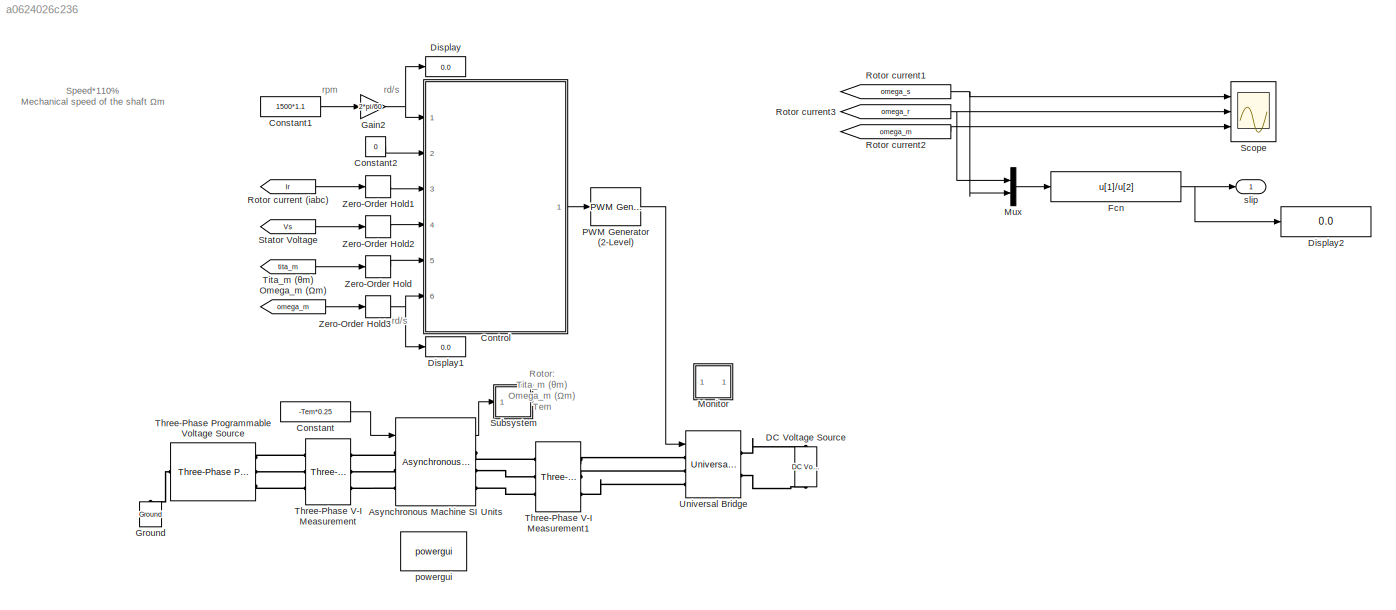
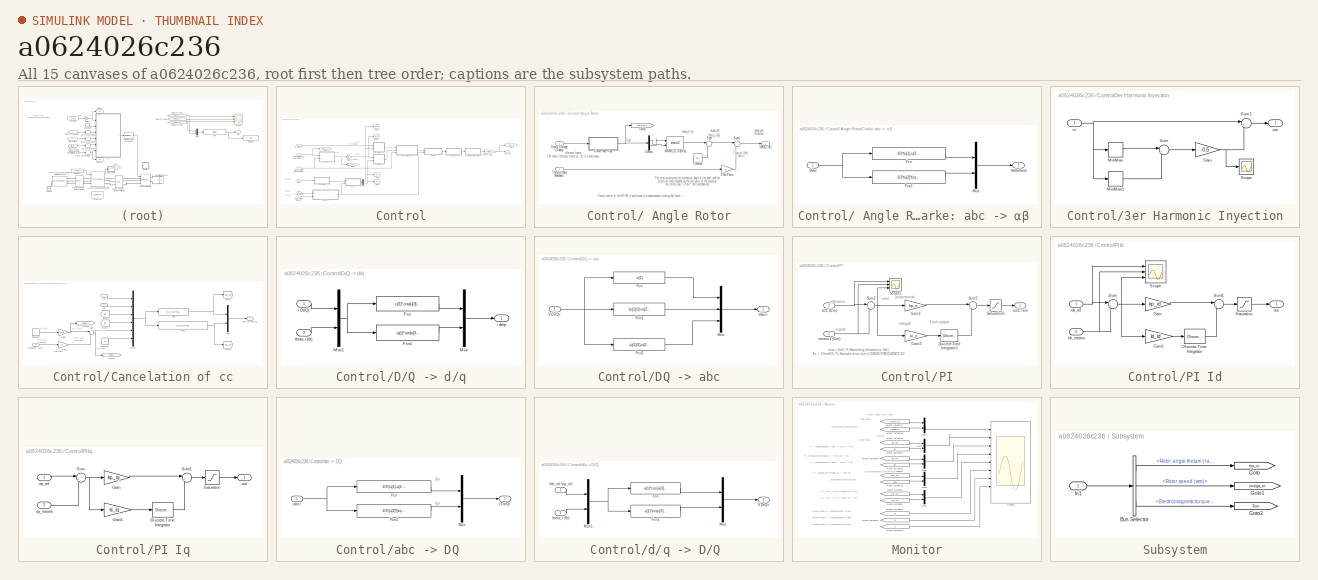
[diagram: thumbnail index - all 15 canvases of the model, root first then tree order]
MODEL slx_a0624026c236
KIND model
CONFIG AbsTol = auto
CONFIG EnableMultiTasking = on
CONFIG FixedStep = auto
CONFIG MaxStep = auto
CONFIG MinStep = auto
CONFIG RelTol = 1e-3
CONFIG SampleTimeConstraint = Unconstrained
CONFIG Solver = ode45
CONFIG SolverName = ode45
CONFIG StartTime = 0.0
CONFIG StopTime = 5
BLOCK [Reference] Asynchronous Machine SI Units  REF=powerlib/Machines/Asynchronous Machine
SI Units
  AttributesFormatString = \n
  Ports = [1, 1, 0, 0, 0, 3, 3]
  SourceBlock = powerlib/Machines/Asynchronous Machine\nSI Units
  SourceProductBaseCode = PS
  SourceProductName = Simscape Power Systems
  SourceType = Asynchronous Machine
BLOCK [Constant] Constant
  Value = -Tem*0.25
BLOCK [Constant] Constant1
  Value = 1500*1.1
BLOCK [Constant] Constant2
  Value = 0
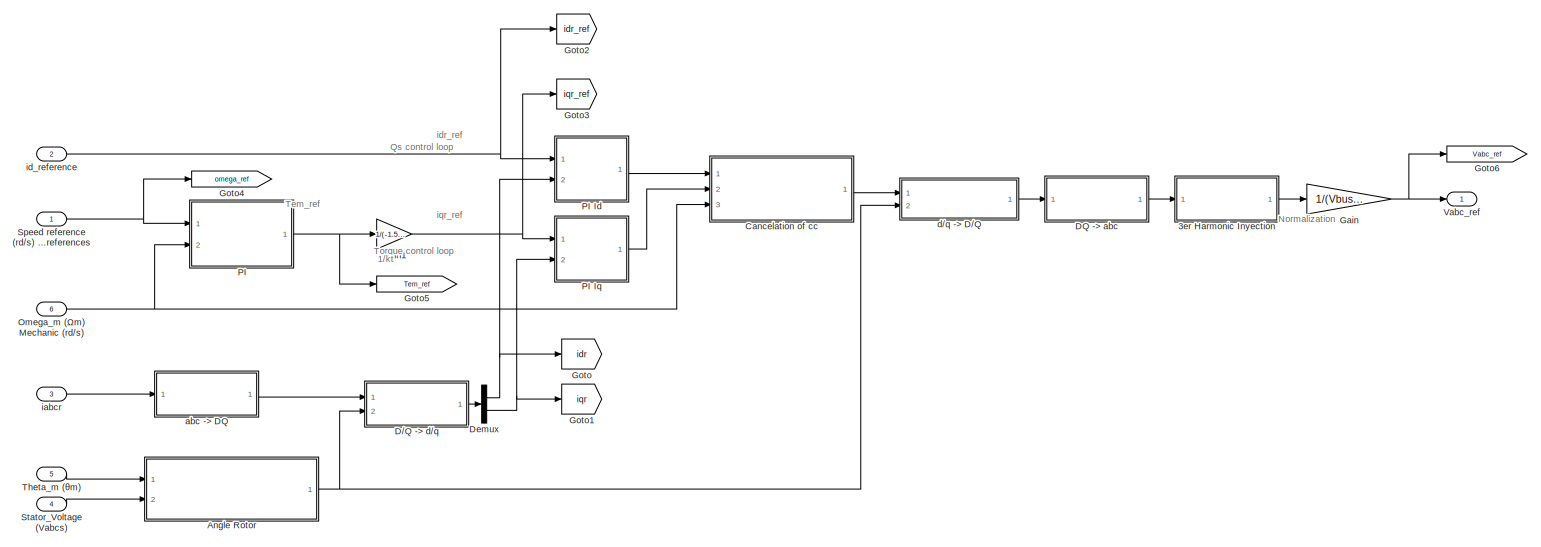
[diagram: Control - part 1/2, most of the canvas]
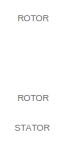
[diagram: Control - part 2/2, bottom left region]
BLOCK [SubSystem] Control
  Ports = [6, 1]
  RequestExecContextInheritance = off
  Variant = off
BLOCK [SubSystem] Control/ Angle Rotor
  Ports = [2, 1]
  RequestExecContextInheritance = off
  Variant = off
BLOCK [SubSystem] Control/ Angle Rotor/Clarke: abc -> αβ 
  Ports = [1, 1]
  RequestExecContextInheritance = off
  Variant = off
BLOCK [Fcn] Control/ Angle Rotor/Clarke: abc -> αβ /Fcn
  Expr = 2/3*(u[1]-u[2]/2-u[3]/2)
BLOCK [Fcn] Control/ Angle Rotor/Clarke: abc -> αβ /Fcn1
  Expr = 2/3*(u[2]*(sqrt(3)/2)-u[3]*(sqrt(3)/2))
BLOCK [Mux] Control/ Angle Rotor/Clarke: abc -> αβ /Mux
  DisplayOption = bar
  Inputs = 2
  Ports = [2, 1]
BLOCK [Inport] Control/ Angle Rotor/Clarke: abc -> αβ /Vabc
  IconDisplay = Port number
BLOCK [Outport] Control/ Angle Rotor/Clarke: abc -> αβ /Valfa//beta 
  IconDisplay = Port number
BLOCK [Constant] Control/ Angle Rotor/Constant
  Value = pi/2
BLOCK [Demux] Control/ Angle Rotor/Demux
  DisplayOption = bar
  Outputs = 2
  Ports = [1, 2]
BLOCK [Goto] Control/ Angle Rotor/Goto5
  GotoTag = Valfa_beta
  TagVisibility = global
BLOCK [Gain] Control/ Angle Rotor/Pole Pairs
  Gain = p
  OutDataTypeStr = Inherit: Inherit via internal rule
  ParamDataTypeStr = Inherit: Inherit via internal rule
  SaturateOnIntegerOverflow = off
BLOCK [Inport] Control/ Angle Rotor/Stator_Voltage (Vabcs)
  IconDisplay = Port number
  Port = 2
BLOCK [Sum] Control/ Angle Rotor/Sum
  IconShape = round
  InputSameDT = off
  Inputs = |+-
  OutDataTypeStr = Inherit: Inherit via internal rule
  Ports = [2, 1]
  SaturateOnIntegerOverflow = off
BLOCK [Sum] Control/ Angle Rotor/Sum1
  IconShape = round
  InputSameDT = off
  Inputs = |+-
  OutDataTypeStr = Inherit: Inherit via internal rule
  Ports = [2, 1]
  SaturateOnIntegerOverflow = off
BLOCK [Inport] Control/ Angle Rotor/Theta_m (θm) Mechanic
  IconDisplay = Port number
BLOCK [Outport] Control/ Angle Rotor/theta_r (θr)
  IconDisplay = Port number
BLOCK [Trigonometry] Control/ Angle Rotor/θv=tan^(-1) (Vβ//Vα)
  Operator = atan2
  Ports = [2, 1]
BLOCK [SubSystem] Control/3er Harmonic Inyection
  Ports = [1, 1]
  RequestExecContextInheritance = off
  Variant = off
BLOCK [Gain] Control/3er Harmonic Inyection/Gain
  Gain = -0.5
  OutDataTypeStr = Inherit: Inherit via internal rule
  ParamDataTypeStr = Inherit: Inherit via internal rule
  SaturateOnIntegerOverflow = off
BLOCK [MinMax] Control/3er Harmonic Inyection/MinMax
  InputSameDT = off
  Ports = [1, 1]
  SaturateOnIntegerOverflow = off
BLOCK [MinMax] Control/3er Harmonic Inyection/MinMax1
  Function = max
  InputSameDT = off
  Ports = [1, 1]
  SaturateOnIntegerOverflow = off
BLOCK [Scope] Control/3er Harmonic Inyection/Scope
  NumInputPorts = 1
  Ports = [1]
  ScopeSpecificationString = Simulink.scopes.TimeScopeBlockCfg('CurrentConfiguration', extmgr.ConfigurationSet(extmgr.Configuration('Core','General UI',true),extmgr.Configuration('Core','Source UI',true),extmgr.Configuration('Sources','WiredSimulink',true,'DataLoggingVariableName','ScopeData2'),extmgr.Configuration('Visuals','Time Domain',true,'SerializedDisplays',{struct('MinYLimReal','-208.5095','MaxYLimReal','235.47421','Y...<+1427ch>
BLOCK [Sum] Control/3er Harmonic Inyection/Sum
  IconShape = round
  InputSameDT = off
  Inputs = |++
  OutDataTypeStr = Inherit: Inherit via internal rule
  Ports = [2, 1]
  SaturateOnIntegerOverflow = off
BLOCK [Sum] Control/3er Harmonic Inyection/Sum1
  IconShape = round
  InputSameDT = off
  Inputs = |++
  OutDataTypeStr = Inherit: Inherit via internal rule
  Ports = [2, 1]
  SaturateOnIntegerOverflow = off
BLOCK [Inport] Control/3er Harmonic Inyection/in
  IconDisplay = Port number
BLOCK [Outport] Control/3er Harmonic Inyection/out
  IconDisplay = Port number
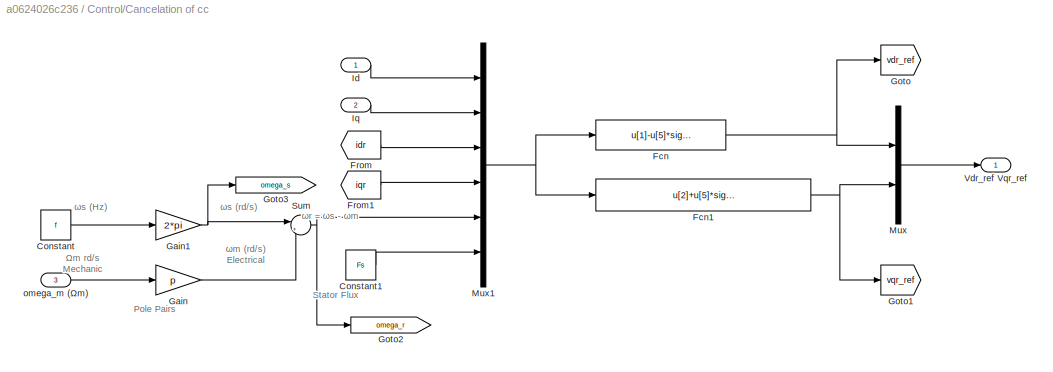
BLOCK [SubSystem] Control/Cancelation of cc
  Ports = [3, 1]
  RequestExecContextInheritance = off
  Variant = off
BLOCK [Constant] Control/Cancelation of cc/Constant
  Value = f
BLOCK [Constant] Control/Cancelation of cc/Constant1
  Value = Fs
BLOCK [Fcn] Control/Cancelation of cc/Fcn
  Expr = u[1]-u[5]*sigma*Lr*u[4]
BLOCK [Fcn] Control/Cancelation of cc/Fcn1
  Expr = u[2]+u[5]*sigma*Lr*u[3]+u[5]*(Lm/Ls)*u[6]
BLOCK [From] Control/Cancelation of cc/From
  GotoTag = idr
  IconDisplay = Signal name
  TagVisibility = global
BLOCK [From] Control/Cancelation of cc/From1
  GotoTag = iqr
  IconDisplay = Signal name
  TagVisibility = global
BLOCK [Gain] Control/Cancelation of cc/Gain
  Gain = p
  OutDataTypeStr = Inherit: Inherit via internal rule
  ParamDataTypeStr = Inherit: Inherit via internal rule
  SaturateOnIntegerOverflow = off
BLOCK [Gain] Control/Cancelation of cc/Gain1
  Gain = 2*pi
  OutDataTypeStr = Inherit: Inherit via internal rule
  ParamDataTypeStr = Inherit: Inherit via internal rule
  SaturateOnIntegerOverflow = off
BLOCK [Goto] Control/Cancelation of cc/Goto
  GotoTag = vdr_ref
  TagVisibility = global
BLOCK [Goto] Control/Cancelation of cc/Goto1
  GotoTag = vqr_ref
  TagVisibility = global
BLOCK [Goto] Control/Cancelation of cc/Goto2
  GotoTag = omega_r
  TagVisibility = global
BLOCK [Goto] Control/Cancelation of cc/Goto3
  GotoTag = omega_s
  TagVisibility = global
BLOCK [Inport] Control/Cancelation of cc/Id
  IconDisplay = Port number
BLOCK [Inport] Control/Cancelation of cc/Iq
  IconDisplay = Port number
  Port = 2
BLOCK [Mux] Control/Cancelation of cc/Mux
  DisplayOption = bar
  Inputs = 2
  Ports = [2, 1]
BLOCK [Mux] Control/Cancelation of cc/Mux1
  DisplayOption = bar
  Inputs = 6
  Ports = [6, 1]
BLOCK [Sum] Control/Cancelation of cc/Sum
  IconShape = round
  InputSameDT = off
  Inputs = |+-
  OutDataTypeStr = Inherit: Inherit via internal rule
  Ports = [2, 1]
  SaturateOnIntegerOverflow = off
BLOCK [Outport] Control/Cancelation of cc/Vdr_ref  Vqr_ref
  IconDisplay = Port number
BLOCK [Inport] Control/Cancelation of cc/omega_m (Ωm)
  IconDisplay = Port number
  Port = 3
BLOCK [SubSystem] Control/D//Q -> d//q
  Ports = [2, 1]
  RequestExecContextInheritance = off
  Variant = off
BLOCK [Fcn] Control/D//Q -> d//q/Fcn
  Expr = u(1)*cos(u[3])+u[2]*sin(u[3])
BLOCK [Fcn] Control/D//Q -> d//q/Fcn1
  Expr = -u(1)*sin(u[3])+u[2]*cos(u[3])
BLOCK [Mux] Control/D//Q -> d//q/Mux
  DisplayOption = bar
  Inputs = 2
  Ports = [2, 1]
BLOCK [Mux] Control/D//Q -> d//q/Mux1
  DisplayOption = bar
  Inputs = 2
  Ports = [2, 1]
BLOCK [Inport] Control/D//Q -> d//q/i Dr//Qr
  IconDisplay = Port number
BLOCK [Outport] Control/D//Q -> d//q/i dr//qr
  IconDisplay = Port number
BLOCK [Inport] Control/D//Q -> d//q/theta_r (θr)
  IconDisplay = Port number
  Port = 2
BLOCK [SubSystem] Control/DQ -> abc
  Ports = [1, 1]
  RequestExecContextInheritance = off
  Variant = off
BLOCK [Fcn] Control/DQ -> abc/Fcn
  Expr = u(1)
BLOCK [Fcn] Control/DQ -> abc/Fcn1
  Expr = -(u[1]/2)+u[2]*(sqrt(3)/2)
BLOCK [Fcn] Control/DQ -> abc/Fcn2
  Expr = -(u[1]/2)-u[2]*(sqrt(3)/2)
BLOCK [Mux] Control/DQ -> abc/Mux
  DisplayOption = bar
  Inputs = 3
  Ports = [3, 1]
BLOCK [Inport] Control/DQ -> abc/V Dr//Qr
  IconDisplay = Port number
BLOCK [Outport] Control/DQ -> abc/Vabcr
  IconDisplay = Port number
BLOCK [Demux] Control/Demux
  DisplayOption = bar
  Outputs = 2
  Ports = [1, 2]
BLOCK [Gain] Control/Gain
  Gain = 1/(Vbus/2)
  OutDataTypeStr = Inherit: Inherit via internal rule
  ParamDataTypeStr = Inherit: Inherit via internal rule
  SaturateOnIntegerOverflow = off
BLOCK [Gain] Control/Gain1
  Gain = 1/(-1.5*p*Lm/Ls*Fs)
  OutDataTypeStr = Inherit: Inherit via internal rule
  ParamDataTypeStr = Inherit: Inherit via internal rule
  SaturateOnIntegerOverflow = off
BLOCK [Goto] Control/Goto
  GotoTag = idr
  TagVisibility = global
BLOCK [Goto] Control/Goto1
  GotoTag = iqr
  TagVisibility = global
BLOCK [Goto] Control/Goto2
  GotoTag = idr_ref
  TagVisibility = global
BLOCK [Goto] Control/Goto3
  GotoTag = iqr_ref
  TagVisibility = global
BLOCK [Goto] Control/Goto4
  GotoTag = omega_ref
  TagVisibility = global
BLOCK [Goto] Control/Goto5
  GotoTag = Tem_ref
  TagVisibility = global
BLOCK [Goto] Control/Goto6
  GotoTag = Vabc_ref
  TagVisibility = global
BLOCK [Inport] Control/Omega_m (Ωm) Mechanic (rd//s)
  IconDisplay = Port number
  Port = 6
BLOCK [SubSystem] Control/PI
  Ports = [2, 1]
  RequestExecContextInheritance = off
  Variant = off
BLOCK [SubSystem] Control/PI Id
  Ports = [2, 1]
  RequestExecContextInheritance = off
  Variant = off
BLOCK [DiscreteIntegrator] Control/PI Id/Discrete-Time Integrator
  ICPrevOutput = DiscIntNeverNeededParam
  ICPrevScaledInput = DiscIntNeverNeededParam
  LimitOutput = on
  LowerSaturationLimit = -Vbus/sqrt(3)
  Ports = [1, 1]
  SampleTime = 1/fsw
  UpperSaturationLimit = Vbus/sqrt(3)
BLOCK [Gain] Control/PI Id/Gain
  Gain = kp_id
  OutDataTypeStr = Inherit: Inherit via internal rule
  ParamDataTypeStr = Inherit: Inherit via internal rule
  SaturateOnIntegerOverflow = off
BLOCK [Gain] Control/PI Id/Gain1
  Gain = ki_id
  OutDataTypeStr = Inherit: Inherit via internal rule
  ParamDataTypeStr = Inherit: Inherit via internal rule
  SaturateOnIntegerOverflow = off
BLOCK [Saturate] Control/PI Id/Saturation
  InputPortMap = u0
  LowerLimit = -Vbus/sqrt(3)
  Ports = [1, 1]
  UpperLimit = Vbus/sqrt(3)
BLOCK [Scope] Control/PI Id/Scope
  NumInputPorts = 3
  Ports = [3]
  ScopeSpecificationString = Simulink.scopes.TimeScopeBlockCfg('CurrentConfiguration', extmgr.ConfigurationSet(extmgr.Configuration('Core','General UI',true),extmgr.Configuration('Core','Source UI',true),extmgr.Configuration('Sources','WiredSimulink',true,'DataLoggingVariableName','ScopeData1'),extmgr.Configuration('Visuals','Time Domain',true,'SerializedDisplays',{struct('MinYLimReal','-14704.68799','MaxYLimReal','14704.6879...<+1468ch>
BLOCK [Sum] Control/PI Id/Sum
  IconShape = round
  InputSameDT = off
  Inputs = |+-
  OutDataTypeStr = Inherit: Inherit via internal rule
  Ports = [2, 1]
  SaturateOnIntegerOverflow = off
BLOCK [Sum] Control/PI Id/Sum1
  IconShape = round
  InputSameDT = off
  Inputs = |++
  OutDataTypeStr = Inherit: Inherit via internal rule
  Ports = [2, 1]
  SaturateOnIntegerOverflow = off
BLOCK [Inport] Control/PI Id/idr_means
  IconDisplay = Port number
  Port = 2
BLOCK [Inport] Control/PI Id/idr_ref
  IconDisplay = Port number
BLOCK [Outport] Control/PI Id/out
  IconDisplay = Port number
BLOCK [SubSystem] Control/PI Iq
  Ports = [2, 1]
  RequestExecContextInheritance = off
  Variant = off
BLOCK [DiscreteIntegrator] Control/PI Iq/Discrete-Time Integrator
  ICPrevOutput = DiscIntNeverNeededParam
  ICPrevScaledInput = DiscIntNeverNeededParam
  LimitOutput = on
  LowerSaturationLimit = -Vbus/sqrt(3)
  Ports = [1, 1]
  SampleTime = 1/fsw
  UpperSaturationLimit = Vbus/sqrt(3)
BLOCK [Gain] Control/PI Iq/Gain
  Gain = kp_iq
  OutDataTypeStr = Inherit: Inherit via internal rule
  ParamDataTypeStr = Inherit: Inherit via internal rule
  SaturateOnIntegerOverflow = off
BLOCK [Gain] Control/PI Iq/Gain1
  Gain = ki_iq
  OutDataTypeStr = Inherit: Inherit via internal rule
  ParamDataTypeStr = Inherit: Inherit via internal rule
  SaturateOnIntegerOverflow = off
BLOCK [Saturate] Control/PI Iq/Saturation
  InputPortMap = u0
  LowerLimit = -Vbus/sqrt(3)
  Ports = [1, 1]
  UpperLimit = Vbus/sqrt(3)
BLOCK [Sum] Control/PI Iq/Sum
  IconShape = round
  InputSameDT = off
  Inputs = |+-
  OutDataTypeStr = Inherit: Inherit via internal rule
  Ports = [2, 1]
  SaturateOnIntegerOverflow = off
BLOCK [Sum] Control/PI Iq/Sum1
  IconShape = round
  InputSameDT = off
  Inputs = |++
  OutDataTypeStr = Inherit: Inherit via internal rule
  Ports = [2, 1]
  SaturateOnIntegerOverflow = off
BLOCK [Inport] Control/PI Iq/iqr_means
  IconDisplay = Port number
  Port = 2
BLOCK [Inport] Control/PI Iq/iqr_ref
  IconDisplay = Port number
BLOCK [Outport] Control/PI Iq/out
  IconDisplay = Port number
BLOCK [DiscreteIntegrator] Control/PI/Discrete-Time Integrator1
  ICPrevOutput = DiscIntNeverNeededParam
  ICPrevScaledInput = DiscIntNeverNeededParam
  LimitOutput = on
  LowerSaturationLimit = -Tem
  Ports = [1, 1]
  SampleTime = 1/fsw
  UpperSaturationLimit = Tem
BLOCK [Gain] Control/PI/Gain2
  Gain = kp_n
  OutDataTypeStr = Inherit: Inherit via internal rule
  ParamDataTypeStr = Inherit: Inherit via internal rule
  SaturateOnIntegerOverflow = off
BLOCK [Gain] Control/PI/Gain3
  Gain = ki_n
  OutDataTypeStr = Inherit: Inherit via internal rule
  ParamDataTypeStr = Inherit: Inherit via internal rule
  SaturateOnIntegerOverflow = off
BLOCK [Saturate] Control/PI/Saturation1
  InputPortMap = u0
  LowerLimit = -Tem
  Ports = [1, 1]
  UpperLimit = Tem
BLOCK [Scope] Control/PI/Scope1
  NumInputPorts = 3
  Ports = [3]
  ScopeSpecificationString = Simulink.scopes.TimeScopeBlockCfg('CurrentConfiguration', extmgr.ConfigurationSet(extmgr.Configuration('Core','General UI',true),extmgr.Configuration('Core','Source UI',true),extmgr.Configuration('Sources','WiredSimulink',true,'DataLoggingVariableName','ScopeData2','SampleTime','1/fsw '),extmgr.Configuration('Visuals','Time Domain',true,'SerializedDisplays',{struct('MinYLimReal','-21.59845','MaxYL...<+1477ch>
BLOCK [Sum] Control/PI/Sum2
  IconShape = round
  InputSameDT = off
  Inputs = |+-
  OutDataTypeStr = Inherit: Inherit via internal rule
  Ports = [2, 1]
  SaturateOnIntegerOverflow = off
BLOCK [Sum] Control/PI/Sum3
  IconShape = round
  InputSameDT = off
  Inputs = |++
  OutDataTypeStr = Inherit: Inherit via internal rule
  Ports = [2, 1]
  SaturateOnIntegerOverflow = off
BLOCK [Inport] Control/PI/means1 (Ωm) 
  IconDisplay = Port number
  Port = 2
BLOCK [Outport] Control/PI/out1 Tem
  IconDisplay = Port number
BLOCK [Inport] Control/PI/ref1 (Ωm) 
  IconDisplay = Port number
BLOCK [Inport] Control/Speed reference (rd//s) Omega_m (Ωm) references
  IconDisplay = Port number
BLOCK [Inport] Control/Stator_Voltage (Vabcs)
  IconDisplay = Port number
  Port = 4
BLOCK [Inport] Control/Theta_m (θm)
  IconDisplay = Port number
  Port = 5
BLOCK [Outport] Control/Vabc_ref
  IconDisplay = Port number
BLOCK [SubSystem] Control/abc -> DQ 
  Ports = [1, 1]
  RequestExecContextInheritance = off
  Variant = off
BLOCK [Fcn] Control/abc -> DQ /Fcn
  Expr = 2/3*(u[1]-u[2]/2-u[3]/2)
BLOCK [Fcn] Control/abc -> DQ /Fcn1
  Expr = 2/3*(u[2]*(sqrt(3)/2)-u[3]*(sqrt(3)/2))
BLOCK [Mux] Control/abc -> DQ /Mux
  DisplayOption = bar
  Inputs = 2
  Ports = [2, 1]
BLOCK [Outport] Control/abc -> DQ /i Dr//Qr
  IconDisplay = Port number
BLOCK [Inport] Control/abc -> DQ /iabcr
  IconDisplay = Port number
BLOCK [SubSystem] Control/d//q -> D//Q 
  Ports = [2, 1]
  RequestExecContextInheritance = off
  Variant = off
BLOCK [Fcn] Control/d//q -> D//Q /Fcn
  Expr = u(1)*cos(u[3])-u[2]*sin(u[3])
BLOCK [Fcn] Control/d//q -> D//Q /Fcn1
  Expr = u(1)*sin(u[3])+u[2]*cos(u[3])
BLOCK [Mux] Control/d//q -> D//Q /Mux
  DisplayOption = bar
  Inputs = 2
  Ports = [2, 1]
BLOCK [Mux] Control/d//q -> D//Q /Mux1
  DisplayOption = bar
  Inputs = 2
  Ports = [2, 1]
BLOCK [Outport] Control/d//q -> D//Q /V Dr//Qr
  IconDisplay = Port number
BLOCK [Inport] Control/d//q -> D//Q /Vdr_ref  Vqr_ref
  IconDisplay = Port number
BLOCK [Inport] Control/d//q -> D//Q /theta_r (θr)
  IconDisplay = Port number
  Port = 2
BLOCK [Inport] Control/iabcr
  IconDisplay = Port number
  Port = 3
BLOCK [Inport] Control/id_reference
  IconDisplay = Port number
  Port = 2
BLOCK [Reference] DC Voltage Source  REF=powerlib/Electrical
Sources/DC Voltage Source
  Ports = [0, 0, 0, 0, 0, 1, 1]
  SourceBlock = powerlib/Electrical\nSources/DC Voltage Source
  SourceProductBaseCode = PS
  SourceProductName = Simscape Power Systems
  SourceType = DC Voltage Source
BLOCK [Display] Display
  Decimation = 1
  Ports = [1]
BLOCK [Display] Display1
  Decimation = 1
  Ports = [1]
BLOCK [Display] Display2
  Decimation = 1
  Ports = [1]
BLOCK [Fcn] Fcn
  Expr = u[1]/u[2]
BLOCK [Gain] Gain2
  Gain = 2*pi/60
  OutDataTypeStr = Inherit: Inherit via internal rule
  ParamDataTypeStr = Inherit: Inherit via internal rule
  SaturateOnIntegerOverflow = off
BLOCK [Reference] Ground  REF=powerlib/Elements/Ground
  Ports = [0, 0, 0, 0, 0, 1]
  SourceBlock = powerlib/Elements/Ground
  SourceProductBaseCode = PS
  SourceProductName = Simscape Power Systems
  SourceType = Ground
BLOCK [SubSystem] Monitor
  Ports = []
  RequestExecContextInheritance = off
  Variant = off
BLOCK [Mux] Monitor/Mux1
  DisplayOption = bar
  Inputs = 2
  Ports = [2, 1]
BLOCK [Mux] Monitor/Mux4
  DisplayOption = bar
  Inputs = 2
  Ports = [2, 1]
BLOCK [Mux] Monitor/Mux5
  DisplayOption = bar
  Inputs = 2
  Ports = [2, 1]
BLOCK [Mux] Monitor/Mux6
  DisplayOption = bar
  Inputs = 2
  Ports = [2, 1]
BLOCK [Mux] Monitor/Mux7
  DisplayOption = bar
  Inputs = 2
  Ports = [2, 1]
BLOCK [From] Monitor/Rotor current10
  GotoTag = Vs
  TagVisibility = global
BLOCK [From] Monitor/Rotor current11
  GotoTag = Is
  TagVisibility = global
BLOCK [From] Monitor/Rotor current12
  GotoTag = Ir
  TagVisibility = global
BLOCK [From] Monitor/Rotor current17
  GotoTag = omega_ref
  TagVisibility = global
BLOCK [From] Monitor/Rotor current18
  GotoTag = omega_m
  TagVisibility = global
BLOCK [From] Monitor/Rotor current19
  GotoTag = iqr_ref
  TagVisibility = global
BLOCK [From] Monitor/Rotor current20
  GotoTag = iqr
  TagVisibility = global
BLOCK [From] Monitor/Rotor current21
  GotoTag = Tem_ref
  TagVisibility = global
BLOCK [From] Monitor/Rotor current22
  GotoTag = Tem
  TagVisibility = global
BLOCK [From] Monitor/Rotor current23
  GotoTag = idr_ref
  TagVisibility = global
BLOCK [From] Monitor/Rotor current24
  GotoTag = idr
  TagVisibility = global
BLOCK [From] Monitor/Rotor current8
  GotoTag = vdr_ref
  TagVisibility = global
BLOCK [From] Monitor/Rotor current9
  GotoTag = vqr_ref
  TagVisibility = global
BLOCK [Scope] Monitor/Scope1
  NumInputPorts = 9
  Ports = [9]
  ScopeSpecificationString = Simulink.scopes.TimeScopeBlockCfg('CurrentConfiguration', extmgr.ConfigurationSet(extmgr.Configuration('Core','General UI',true),extmgr.Configuration('Core','Source UI',true),extmgr.Configuration('Sources','WiredSimulink',true,'DataLoggingSaveFormat','StructureWithTime','SampleTime','5e-5','DataLoggingDecimation','1','DataLoggingDecimateData',true,'DataLoggingVariableName','ScopeData3'),extmgr.Con...<+7314ch>
BLOCK [Mux] Mux
  DisplayOption = bar
  Inputs = 2
  Ports = [2, 1]
BLOCK [From] Omega_m (Ωm)
  GotoTag = omega_m
  TagVisibility = global
BLOCK [Reference] PWM Generator (2-Level)  REF=powerlib_meascontrol/Pulse & Signal
Generators/PWM Generator
(2-Level)
  Ports = [1, 1]
  SourceBlock = powerlib_meascontrol/Pulse & Signal\nGenerators/PWM Generator\n(2-Level)
  SourceProductBaseCode = PS
  SourceProductName = Simscape Power Systems
  SourceType = PWM Generator (2-Level)
BLOCK [From] Rotor current (iabc)
  GotoTag = Ir
  TagVisibility = global
BLOCK [From] Rotor current1
  GotoTag = omega_s
  TagVisibility = global
BLOCK [From] Rotor current2
  GotoTag = omega_m
  TagVisibility = global
BLOCK [From] Rotor current3
  GotoTag = omega_r
  TagVisibility = global
BLOCK [Scope] Scope
  NumInputPorts = 3
  Ports = [3]
  ScopeSpecificationString = Simulink.scopes.TimeScopeBlockCfg('CurrentConfiguration', extmgr.ConfigurationSet(extmgr.Configuration('Core','General UI',true),extmgr.Configuration('Core','Source UI',true),extmgr.Configuration('Sources','WiredSimulink',true,'DataLoggingVariableName','ScopeData1'),extmgr.Configuration('Visuals','Time Domain',true,'SerializedDisplays',{struct('MinYLimReal','-39.26991','MaxYLimReal','353.42917','Y...<+1504ch>
BLOCK [From] Stator Voltage
  GotoTag = Vs
  TagVisibility = global
BLOCK [SubSystem] Subsystem
  Ports = [1]
  RequestExecContextInheritance = off
  Variant = off
BLOCK [BusSelector] Subsystem/Bus Selector
  OutputAsBus = off
  OutputSignals = Mechanical.Rotor angle thetam (rad),Mechanical.Rotor speed (wm),Mechanical.Electromagnetic torque Te (N*m)
  Ports = [1, 3]
BLOCK [Goto] Subsystem/Goto
  GotoTag = tita_m
  TagVisibility = global
BLOCK [Goto] Subsystem/Goto1
  GotoTag = omega_m
  TagVisibility = global
BLOCK [Goto] Subsystem/Goto2
  GotoTag = Tem
  TagVisibility = global
BLOCK [Inport] Subsystem/In1
  IconDisplay = Port number
BLOCK [Reference] Three-Phase Programmable Voltage Source  REF=powerlib/Electrical
Sources/Three-Phase
Programmable
Voltage Source
  Ports = [0, 0, 0, 0, 0, 1, 3]
  SourceBlock = powerlib/Electrical\nSources/Three-Phase\nProgrammable\nVoltage Source
  SourceProductBaseCode = PS
  SourceProductName = Simscape Power Systems
  SourceType = Three-Phase Programmable Voltage Source
BLOCK [Reference] Three-Phase V-I Measurement  REF=powerlib/Measurements/Three-Phase
V-I Measurement
  Ports = [0, 0, 0, 0, 0, 3, 3]
  SourceBlock = powerlib/Measurements/Three-Phase\nV-I Measurement
  SourceProductBaseCode = PS
  SourceProductName = Simscape Power Systems
  SourceType = Three-Phase VI Measurement
BLOCK [Reference] Three-Phase V-I Measurement1  REF=powerlib/Measurements/Three-Phase
V-I Measurement
  Ports = [0, 0, 0, 0, 0, 3, 3]
  SourceBlock = powerlib/Measurements/Three-Phase\nV-I Measurement
  SourceProductBaseCode = PS
  SourceProductName = Simscape Power Systems
  SourceType = Three-Phase VI Measurement
BLOCK [From] Tita_m (θm)
  GotoTag = tita_m
  TagVisibility = global
BLOCK [Reference] Universal Bridge  REF=powerlib/Power
Electronics/Universal Bridge
  Ports = [1, 0, 0, 0, 0, 3, 2]
  SourceBlock = powerlib/Power\nElectronics/Universal Bridge
  SourceProductBaseCode = PS
  SourceProductName = Simscape Power Systems
  SourceType = Universal Bridge
BLOCK [ZeroOrderHold] Zero-Order Hold
  SampleTime = 1/fsw
BLOCK [ZeroOrderHold] Zero-Order Hold1
  SampleTime = 1/fsw
BLOCK [ZeroOrderHold] Zero-Order Hold2
  SampleTime = 1/fsw
BLOCK [ZeroOrderHold] Zero-Order Hold3
  SampleTime = 1/fsw
BLOCK [Reference] powergui  REF=powerlib/powergui
  Ports = []
  Priority = 1
  SourceBlock = powerlib/powergui
  SourceProductBaseCode = PS
  SourceProductName = Simscape Power Systems
  SourceType = PSB option menu block
BLOCK [Outport] slip
  IconDisplay = Port number
ANNOTATION (root): Rotor: Tita_m (θm) Omega_m (Ωm) Tem
ANNOTATION (root): Speed*110% Mechanical speed of the shaft Ωm
ANNOTATION (root): rd/s
ANNOTATION (root): rpm
ANNOTATION Control: 1/k t
ANNOTATION Control: Normalization
ANNOTATION Control: Qs control loop
ANNOTATION Control: ROTOR
ANNOTATION Control: STATOR
ANNOTATION Control: Tem_ref
ANNOTATION Control: Torque control loop
ANNOTATION Control: idr_ref
ANNOTATION Control: iqr_ref
ANNOTATION Control/ Angle Rotor: Vector control of the DFIM is performed in a synchronously rotating dq frame, in which the d-axis is aligned, in this case, with the stator flux space vector
ANNOTATION Control/ Angle Rotor: The relation between the mechanical angle of the shaft and the electrical angle depends on the pole pairs of the machine: θm (electrical) = Pole * θm (mechanical)
ANNOTATION Control/ Angle Rotor: The stator reference frame (α - β) is a stationary reference frame.
ANNOTATION Control/ Angle Rotor: Theta_m (θm) Electric
ANNOTATION Control/ Angle Rotor: V αβ
ANNOTATION Control/ Angle Rotor: θs=θr+θm θr=θs-θm
ANNOTATION Control/ Angle Rotor: theta_V θv
ANNOTATION Control/ Angle Rotor: theta_s (θs)
ANNOTATION Control/ Angle Rotor: θs=θv-90°
ANNOTATION Control/Cancelation of cc: Ωm rd/s Mechanic
ANNOTATION Control/Cancelation of cc: Pole Pairs
ANNOTATION Control/Cancelation of cc: Stator Flux
ANNOTATION Control/Cancelation of cc: ωm (rd/s) Electrical
ANNOTATION Control/Cancelation of cc: ωr = ωs - ωm
ANNOTATION Control/Cancelation of cc: ωs (Hz)
ANNOTATION Control/Cancelation of cc: ωs (rd/s)
ANNOTATION Control/PI: Limit output
ANNOTATION Control/PI: error
ANNOTATION Control/PI: fsw = 4e3; % Switching frequency (Hz) Ts = 1/fsw/50; % Sample time (sec) CHECK FREQUENCY 50
ANNOTATION Control/PI: integral
ANNOTATION Control/PI: proportional
ANNOTATION Control/PI: reference
ANNOTATION Control/PI: signal
ANNOTATION Control/abc -> DQ : iDr
ANNOTATION Control/abc -> DQ : iQr
ANNOTATION Monitor: Rotor Speed (ωm) rad/s:
ANNOTATION Monitor: Asynchronous Machine data:
ANNOTATION Monitor: Current:
ANNOTATION Monitor: Electromagnetic Torque (Nm)
ANNOTATION Monitor: PI (idr) -> idr -> cancel cc -> vdr
ANNOTATION Monitor: PI (iqr) -> iqr -> cancel cc -> vqr
ANNOTATION Monitor: PI (omega_ref/omega_m) -> Tem_ref
ANNOTATION Monitor: PI (omega_ref/omega_m) -> Tem_ref -> iqr
ANNOTATION Monitor: Three-Phase V-I Measurement Rotor:
ANNOTATION Monitor: Three-Phase V-I Measurement Stator:
ANNOTATION Monitor: V-I Measurement1: Iabcr -> IDQr -> Idr
ANNOTATION Monitor: input data:
LINE Asynchronous Machine SI Units:1 -> Subsystem:1
LINE Constant1:1 -> Gain2:1
LINE Constant2:1 -> Control:2
LINE Constant:1 -> Asynchronous Machine SI Units:1
LINE Control/ Angle Rotor/Clarke: abc -> αβ /Fcn1:1 -> Control/ Angle Rotor/Clarke: abc -> αβ /Mux:2
LINE Control/ Angle Rotor/Clarke: abc -> αβ /Fcn:1 -> Control/ Angle Rotor/Clarke: abc -> αβ /Mux:1
LINE Control/ Angle Rotor/Clarke: abc -> αβ /Mux:1 -> Control/ Angle Rotor/Clarke: abc -> αβ /Valfa//beta :1
NET Control/ Angle Rotor/Clarke: abc -> αβ /Vabc:1 -> Control/ Angle Rotor/Clarke: abc -> αβ /Fcn1:1, Control/ Angle Rotor/Clarke: abc -> αβ /Fcn:1
NET Control/ Angle Rotor/Clarke: abc -> αβ :1 -> Control/ Angle Rotor/Demux:1, Control/ Angle Rotor/Goto5:1
LINE Control/ Angle Rotor/Constant:1 -> Control/ Angle Rotor/Sum:2
LINE Control/ Angle Rotor/Demux:1 -> Control/ Angle Rotor/θv=tan^(-1) (Vβ//Vα):2
LINE Control/ Angle Rotor/Demux:2 -> Control/ Angle Rotor/θv=tan^(-1) (Vβ//Vα):1
LINE Control/ Angle Rotor/Pole Pairs:1 -> Control/ Angle Rotor/Sum1:2
LINE Control/ Angle Rotor/Stator_Voltage (Vabcs):1 -> Control/ Angle Rotor/Clarke: abc -> αβ :1
LINE Control/ Angle Rotor/Sum1:1 -> Control/ Angle Rotor/theta_r (θr):1
LINE Control/ Angle Rotor/Sum:1 -> Control/ Angle Rotor/Sum1:1
LINE Control/ Angle Rotor/Theta_m (θm) Mechanic:1 -> Control/ Angle Rotor/Pole Pairs:1
LINE Control/ Angle Rotor/θv=tan^(-1) (Vβ//Vα):1 -> Control/ Angle Rotor/Sum:1
NET Control/ Angle Rotor:1 -> Control/D//Q -> d//q:2, Control/d//q -> D//Q :2
NET Control/3er Harmonic Inyection/Gain:1 -> Control/3er Harmonic Inyection/Scope:1, Control/3er Harmonic Inyection/Sum1:2
LINE Control/3er Harmonic Inyection/MinMax1:1 -> Control/3er Harmonic Inyection/Sum:2
LINE Control/3er Harmonic Inyection/MinMax:1 -> Control/3er Harmonic Inyection/Sum:1
LINE Control/3er Harmonic Inyection/Sum1:1 -> Control/3er Harmonic Inyection/out:1
LINE Control/3er Harmonic Inyection/Sum:1 -> Control/3er Harmonic Inyection/Gain:1
NET Control/3er Harmonic Inyection/in:1 -> Control/3er Harmonic Inyection/MinMax1:1, Control/3er Harmonic Inyection/MinMax:1, Control/3er Harmonic Inyection/Sum1:1
LINE Control/3er Harmonic Inyection:1 -> Control/Gain:1
LINE Control/Cancelation of cc/Constant1:1 -> Control/Cancelation of cc/Mux1:6
LINE Control/Cancelation of cc/Constant:1 -> Control/Cancelation of cc/Gain1:1
NET Control/Cancelation of cc/Fcn1:1 -> Control/Cancelation of cc/Goto1:1, Control/Cancelation of cc/Mux:2
NET Control/Cancelation of cc/Fcn:1 -> Control/Cancelation of cc/Goto:1, Control/Cancelation of cc/Mux:1
LINE Control/Cancelation of cc/From1:1 -> Control/Cancelation of cc/Mux1:4
LINE Control/Cancelation of cc/From:1 -> Control/Cancelation of cc/Mux1:3
NET Control/Cancelation of cc/Gain1:1 -> Control/Cancelation of cc/Goto3:1, Control/Cancelation of cc/Sum:1
LINE Control/Cancelation of cc/Gain:1 -> Control/Cancelation of cc/Sum:2
LINE Control/Cancelation of cc/Id:1 -> Control/Cancelation of cc/Mux1:1
LINE Control/Cancelation of cc/Iq:1 -> Control/Cancelation of cc/Mux1:2
NET Control/Cancelation of cc/Mux1:1 -> Control/Cancelation of cc/Fcn1:1, Control/Cancelation of cc/Fcn:1
LINE Control/Cancelation of cc/Mux:1 -> Control/Cancelation of cc/Vdr_ref  Vqr_ref:1
NET Control/Cancelation of cc/Sum:1 -> Control/Cancelation of cc/Goto2:1, Control/Cancelation of cc/Mux1:5
LINE Control/Cancelation of cc/omega_m (Ωm):1 -> Control/Cancelation of cc/Gain:1
LINE Control/Cancelation of cc:1 -> Control/d//q -> D//Q :1
LINE Control/D//Q -> d//q/Fcn1:1 -> Control/D//Q -> d//q/Mux:2
LINE Control/D//Q -> d//q/Fcn:1 -> Control/D//Q -> d//q/Mux:1
NET Control/D//Q -> d//q/Mux1:1 -> Control/D//Q -> d//q/Fcn1:1, Control/D//Q -> d//q/Fcn:1
LINE Control/D//Q -> d//q/Mux:1 -> Control/D//Q -> d//q/i dr//qr:1
LINE Control/D//Q -> d//q/i Dr//Qr:1 -> Control/D//Q -> d//q/Mux1:1
LINE Control/D//Q -> d//q/theta_r (θr):1 -> Control/D//Q -> d//q/Mux1:2
LINE Control/D//Q -> d//q:1 -> Control/Demux:1
LINE Control/DQ -> abc/Fcn1:1 -> Control/DQ -> abc/Mux:2
LINE Control/DQ -> abc/Fcn2:1 -> Control/DQ -> abc/Mux:3
LINE Control/DQ -> abc/Fcn:1 -> Control/DQ -> abc/Mux:1
LINE Control/DQ -> abc/Mux:1 -> Control/DQ -> abc/Vabcr:1
NET Control/DQ -> abc/V Dr//Qr:1 -> Control/DQ -> abc/Fcn1:1, Control/DQ -> abc/Fcn2:1, Control/DQ -> abc/Fcn:1
LINE Control/DQ -> abc:1 -> Control/3er Harmonic Inyection:1
NET Control/Demux:1 -> Control/Goto:1, Control/PI Id:2
NET Control/Demux:2 -> Control/Goto1:1, Control/PI Iq:2
NET Control/Gain1:1 -> Control/Goto3:1, Control/PI Iq:1
NET Control/Gain:1 -> Control/Goto6:1, Control/Vabc_ref:1
NET Control/Omega_m (Ωm) Mechanic (rd//s):1 -> Control/Cancelation of cc:3, Control/PI:2
LINE Control/PI Id/Discrete-Time Integrator:1 -> Control/PI Id/Sum1:2
LINE Control/PI Id/Gain1:1 -> Control/PI Id/Discrete-Time Integrator:1
LINE Control/PI Id/Gain:1 -> Control/PI Id/Sum1:1
LINE Control/PI Id/Saturation:1 -> Control/PI Id/out:1
LINE Control/PI Id/Sum1:1 -> Control/PI Id/Saturation:1
NET Control/PI Id/Sum:1 -> Control/PI Id/Gain1:1, Control/PI Id/Gain:1, Control/PI Id/Scope:3
NET Control/PI Id/idr_means:1 -> Control/PI Id/Scope:2, Control/PI Id/Sum:2
NET Control/PI Id/idr_ref:1 -> Control/PI Id/Scope:1, Control/PI Id/Sum:1
LINE Control/PI Id:1 -> Control/Cancelation of cc:1
LINE Control/PI Iq/Discrete-Time Integrator:1 -> Control/PI Iq/Sum1:2
LINE Control/PI Iq/Gain1:1 -> Control/PI Iq/Discrete-Time Integrator:1
LINE Control/PI Iq/Gain:1 -> Control/PI Iq/Sum1:1
LINE Control/PI Iq/Saturation:1 -> Control/PI Iq/out:1
LINE Control/PI Iq/Sum1:1 -> Control/PI Iq/Saturation:1
NET Control/PI Iq/Sum:1 -> Control/PI Iq/Gain1:1, Control/PI Iq/Gain:1
LINE Control/PI Iq/iqr_means:1 -> Control/PI Iq/Sum:2
LINE Control/PI Iq/iqr_ref:1 -> Control/PI Iq/Sum:1
LINE Control/PI Iq:1 -> Control/Cancelation of cc:2
LINE Control/PI/Discrete-Time Integrator1:1 -> Control/PI/Sum3:2
LINE Control/PI/Gain2:1 -> Control/PI/Sum3:1
LINE Control/PI/Gain3:1 -> Control/PI/Discrete-Time Integrator1:1
LINE Control/PI/Saturation1:1 -> Control/PI/out1 Tem:1
NET Control/PI/Sum2:1 -> Control/PI/Gain2:1, Control/PI/Gain3:1, Control/PI/Scope1:3
LINE Control/PI/Sum3:1 -> Control/PI/Saturation1:1
NET Control/PI/means1 (Ωm) :1 -> Control/PI/Scope1:2, Control/PI/Sum2:2
NET Control/PI/ref1 (Ωm) :1 -> Control/PI/Scope1:1, Control/PI/Sum2:1
NET Control/PI:1 -> Control/Gain1:1, Control/Goto5:1
NET Control/Speed reference (rd//s) Omega_m (Ωm) references:1 -> Control/Goto4:1, Control/PI:1
LINE Control/Stator_Voltage (Vabcs):1 -> Control/ Angle Rotor:2
LINE Control/Theta_m (θm):1 -> Control/ Angle Rotor:1
LINE Control/abc -> DQ /Fcn1:1 -> Control/abc -> DQ /Mux:2
LINE Control/abc -> DQ /Fcn:1 -> Control/abc -> DQ /Mux:1
LINE Control/abc -> DQ /Mux:1 -> Control/abc -> DQ /i Dr//Qr:1
NET Control/abc -> DQ /iabcr:1 -> Control/abc -> DQ /Fcn1:1, Control/abc -> DQ /Fcn:1
LINE Control/abc -> DQ :1 -> Control/D//Q -> d//q:1
LINE Control/d//q -> D//Q /Fcn1:1 -> Control/d//q -> D//Q /Mux:2
LINE Control/d//q -> D//Q /Fcn:1 -> Control/d//q -> D//Q /Mux:1
NET Control/d//q -> D//Q /Mux1:1 -> Control/d//q -> D//Q /Fcn1:1, Control/d//q -> D//Q /Fcn:1
LINE Control/d//q -> D//Q /Mux:1 -> Control/d//q -> D//Q /V Dr//Qr:1
LINE Control/d//q -> D//Q /Vdr_ref  Vqr_ref:1 -> Control/d//q -> D//Q /Mux1:1
LINE Control/d//q -> D//Q /theta_r (θr):1 -> Control/d//q -> D//Q /Mux1:2
LINE Control/d//q -> D//Q :1 -> Control/DQ -> abc:1
LINE Control/iabcr:1 -> Control/abc -> DQ :1
NET Control/id_reference:1 -> Control/Goto2:1, Control/PI Id:1
LINE Control:1 -> PWM Generator (2-Level):1
NET Fcn:1 -> Display2:1, slip:1
NET Gain2:1 -> Control:1, Display:1
LINE Monitor/Mux1:1 -> Monitor/Scope1:5
LINE Monitor/Mux4:1 -> Monitor/Scope1:1
LINE Monitor/Mux5:1 -> Monitor/Scope1:3
LINE Monitor/Mux6:1 -> Monitor/Scope1:4
LINE Monitor/Mux7:1 -> Monitor/Scope1:2
LINE Monitor/Rotor current10:1 -> Monitor/Scope1:6
LINE Monitor/Rotor current11:1 -> Monitor/Scope1:7
LINE Monitor/Rotor current12:1 -> Monitor/Scope1:8
LINE Monitor/Rotor current17:1 -> Monitor/Mux4:1
LINE Monitor/Rotor current18:1 -> Monitor/Mux4:2
LINE Monitor/Rotor current19:1 -> Monitor/Mux5:1
LINE Monitor/Rotor current20:1 -> Monitor/Mux5:2
LINE Monitor/Rotor current21:1 -> Monitor/Mux6:1
LINE Monitor/Rotor current22:1 -> Monitor/Mux6:2
LINE Monitor/Rotor current23:1 -> Monitor/Mux7:1
LINE Monitor/Rotor current24:1 -> Monitor/Mux7:2
LINE Monitor/Rotor current8:1 -> Monitor/Mux1:1
LINE Monitor/Rotor current9:1 -> Monitor/Mux1:2
LINE Mux:1 -> Fcn:1
LINE Omega_m (Ωm):1 -> Zero-Order Hold3:1
LINE PWM Generator (2-Level):1 -> Universal Bridge:1
LINE Rotor current (iabc):1 -> Zero-Order Hold1:1
NET Rotor current1:1 -> Mux:2, Scope:1
LINE Rotor current2:1 -> Scope:3
NET Rotor current3:1 -> Mux:1, Scope:2
LINE Stator Voltage:1 -> Zero-Order Hold2:1
LINE Subsystem/Bus Selector:1 -> Subsystem/Goto:1
LINE Subsystem/Bus Selector:2 -> Subsystem/Goto1:1
LINE Subsystem/Bus Selector:3 -> Subsystem/Goto2:1
LINE Subsystem/In1:1 -> Subsystem/Bus Selector:1
LINE Tita_m (θm):1 -> Zero-Order Hold:1
LINE Zero-Order Hold1:1 -> Control:3
LINE Zero-Order Hold2:1 -> Control:4
NET Zero-Order Hold3:1 -> Control:6, Display1:1
LINE Zero-Order Hold:1 -> Control:5
PLINE Asynchronous Machine SI Units:LConn1 -- Three-Phase V-I Measurement:RConn1
PLINE Asynchronous Machine SI Units:LConn2 -- Three-Phase V-I Measurement:RConn2
PLINE Asynchronous Machine SI Units:LConn3 -- Three-Phase V-I Measurement:RConn3
PLINE Asynchronous Machine SI Units:RConn1 -- Three-Phase V-I Measurement1:RConn1
PLINE Asynchronous Machine SI Units:RConn2 -- Three-Phase V-I Measurement1:RConn2
PLINE Asynchronous Machine SI Units:RConn3 -- Three-Phase V-I Measurement1:RConn3
PLINE DC Voltage Source:LConn1 -- Universal Bridge:RConn2
PLINE DC Voltage Source:RConn1 -- Universal Bridge:RConn1
PLINE Ground:LConn1 -- Three-Phase Programmable Voltage Source:LConn1
PLINE Three-Phase Programmable Voltage Source:RConn1 -- Three-Phase V-I Measurement:LConn1
PLINE Three-Phase Programmable Voltage Source:RConn2 -- Three-Phase V-I Measurement:LConn2
PLINE Three-Phase Programmable Voltage Source:RConn3 -- Three-Phase V-I Measurement:LConn3
PLINE Three-Phase V-I Measurement1:LConn1 -- Universal Bridge:LConn1
PLINE Three-Phase V-I Measurement1:LConn2 -- Universal Bridge:LConn2
PLINE Three-Phase V-I Measurement1:LConn3 -- Universal Bridge:LConn3
note: NET lines group one-source signal fan-out (src -> all destinations, sorted); 1:1 wires keep LINE
